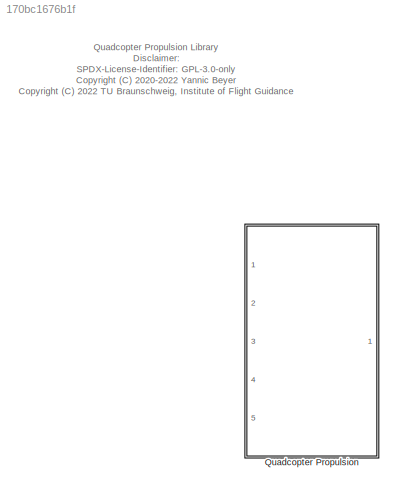
MODEL slx_170bc1676b1f
KIND library
CONFIG AbsTol = auto
CONFIG EnableMultiTasking = off
CONFIG FixedStep = auto
CONFIG MaxStep = auto
CONFIG MinStep = auto
CONFIG RelTol = 1e-3
CONFIG SampleTimeConstraint = Unconstrained
CONFIG Solver = VariableStepAuto
CONFIG SolverName = VariableStepAuto
CONFIG StartTime = 0.0
CONFIG StopTime = 10.0
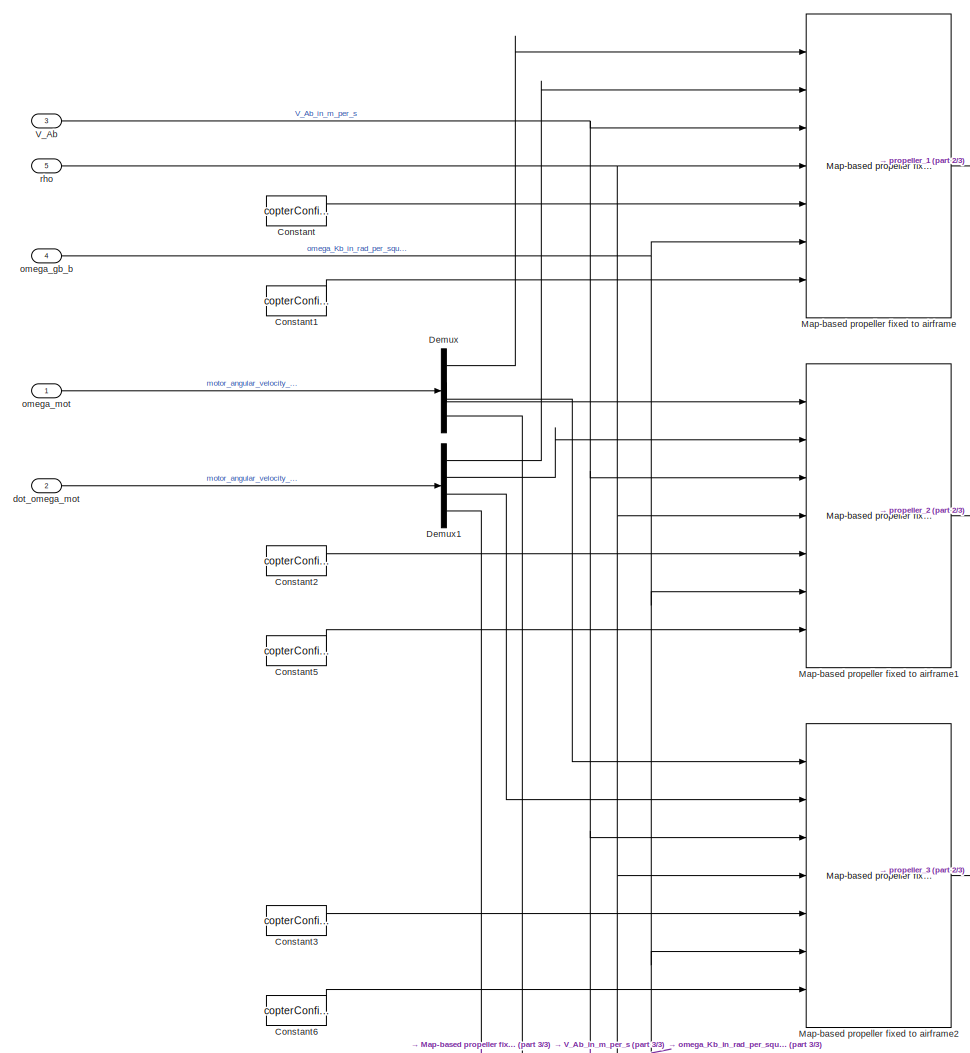
[diagram: Quadcopter Propulsion - part 1/3, left side, full height]
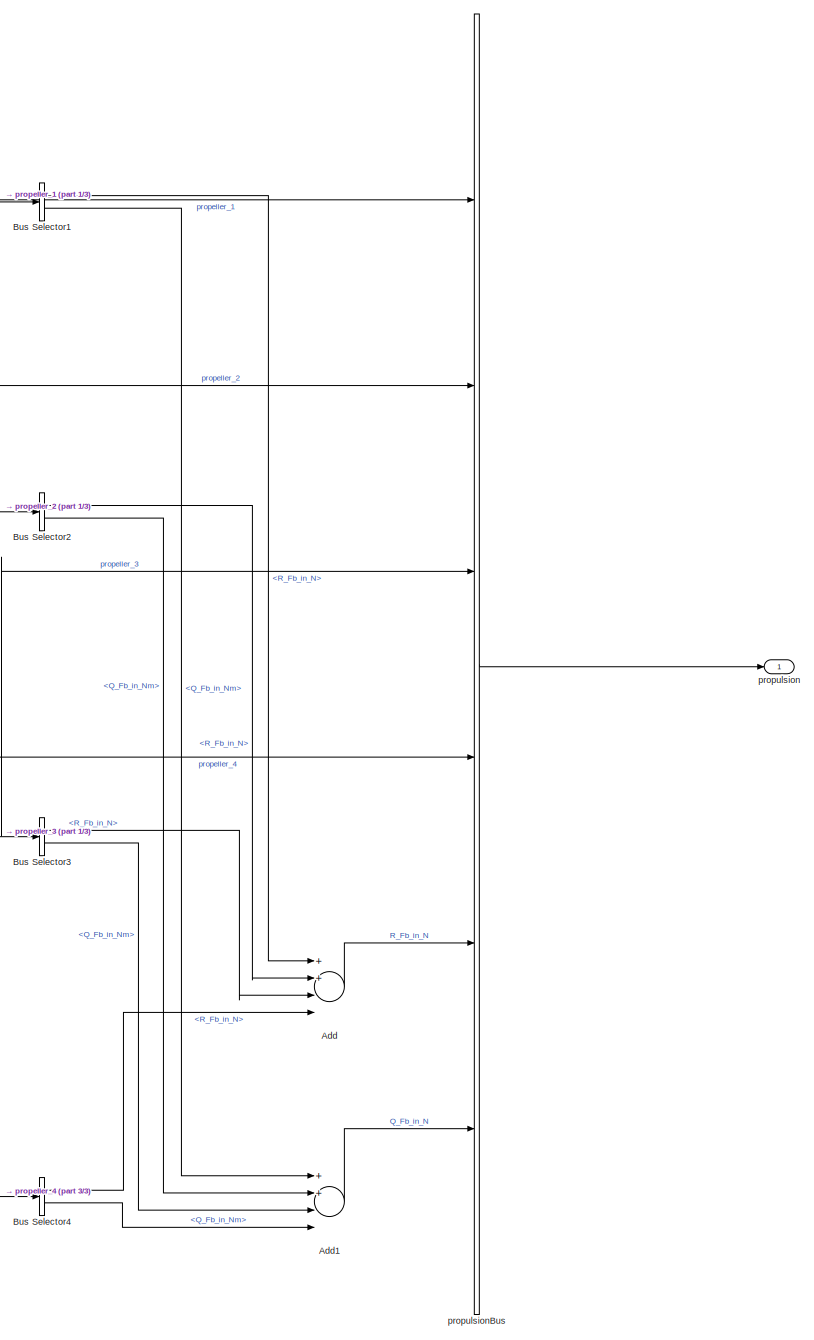
[diagram: Quadcopter Propulsion - part 2/3, right side, full height]
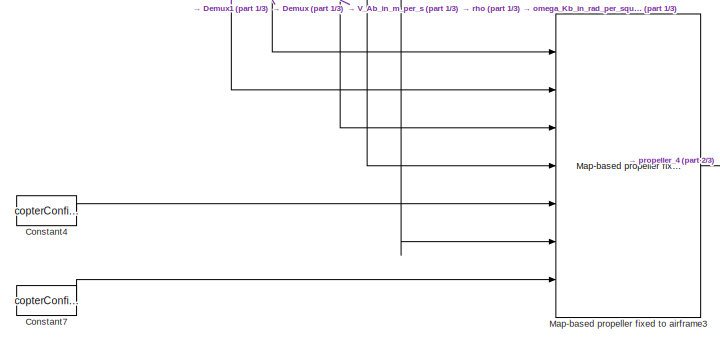
[diagram: Quadcopter Propulsion - part 3/3, bottom left region]
BLOCK [SubSystem] Quadcopter Propulsion
  Ports = [5, 1]
  RequestExecContextInheritance = off
BLOCK [Sum] Quadcopter Propulsion/Add
  InputSameDT = off
  Inputs = 4
  OutDataTypeStr = Inherit: Inherit via internal rule
  Ports = [4, 1]
  SaturateOnIntegerOverflow = off
BLOCK [Sum] Quadcopter Propulsion/Add1
  InputSameDT = off
  Inputs = 4
  OutDataTypeStr = Inherit: Inherit via internal rule
  Ports = [4, 1]
  SaturateOnIntegerOverflow = off
BLOCK [BusSelector] Quadcopter Propulsion/Bus Selector1
  OutputAsBus = off
  OutputSignals = R_Fb_in_N,Q_Fb_in_Nm
  Ports = [1, 2]
BLOCK [BusSelector] Quadcopter Propulsion/Bus Selector2
  OutputAsBus = off
  OutputSignals = R_Fb_in_N,Q_Fb_in_Nm
  Ports = [1, 2]
BLOCK [BusSelector] Quadcopter Propulsion/Bus Selector3
  OutputAsBus = off
  OutputSignals = R_Fb_in_N,Q_Fb_in_Nm
  Ports = [1, 2]
BLOCK [BusSelector] Quadcopter Propulsion/Bus Selector4
  OutputAsBus = off
  OutputSignals = R_Fb_in_N,Q_Fb_in_Nm
  Ports = [1, 2]
BLOCK [Constant] Quadcopter Propulsion/Constant
  Value = copterConfig.propPos_c(:,1) - copterConfig.CoG_Pos_c
BLOCK [Constant] Quadcopter Propulsion/Constant1
  Value = copterConfig.M_b_prop1
BLOCK [Constant] Quadcopter Propulsion/Constant2
  Value = copterConfig.propPos_c(:,2) - copterConfig.CoG_Pos_c
BLOCK [Constant] Quadcopter Propulsion/Constant3
  Value = copterConfig.propPos_c(:,3) - copterConfig.CoG_Pos_c
BLOCK [Constant] Quadcopter Propulsion/Constant4
  Value = copterConfig.propPos_c(:,4) - copterConfig.CoG_Pos_c
BLOCK [Constant] Quadcopter Propulsion/Constant5
  Value = copterConfig.M_b_prop2
BLOCK [Constant] Quadcopter Propulsion/Constant6
  Value = copterConfig.M_b_prop3
BLOCK [Constant] Quadcopter Propulsion/Constant7
  Value = copterConfig.M_b_prop4
BLOCK [Demux] Quadcopter Propulsion/Demux
  DisplayOption = bar
  Ports = [1, 4]
BLOCK [Demux] Quadcopter Propulsion/Demux1
  DisplayOption = bar
  Ports = [1, 4]
BLOCK [Reference] Quadcopter Propulsion/Map-based propeller fixed to airframe  REF=propulsion_lib/Map-based propeller fixed to airframe  (lib defined in slx_12561ba25cc8)
  Ports = [7, 1]
  SourceBlock = propulsion_lib/Map-based propeller fixed to airframe
  SourceProductName = LADAC
BLOCK [Reference] Quadcopter Propulsion/Map-based propeller fixed to airframe1  REF=propulsion_lib/Map-based propeller fixed to airframe  (lib defined in slx_12561ba25cc8)
  Ports = [7, 1]
  SourceBlock = propulsion_lib/Map-based propeller fixed to airframe
  SourceProductName = LADAC
BLOCK [Reference] Quadcopter Propulsion/Map-based propeller fixed to airframe2  REF=propulsion_lib/Map-based propeller fixed to airframe  (lib defined in slx_12561ba25cc8)
  Ports = [7, 1]
  SourceBlock = propulsion_lib/Map-based propeller fixed to airframe
  SourceProductName = LADAC
BLOCK [Reference] Quadcopter Propulsion/Map-based propeller fixed to airframe3  REF=propulsion_lib/Map-based propeller fixed to airframe  (lib defined in slx_12561ba25cc8)
  Ports = [7, 1]
  SourceBlock = propulsion_lib/Map-based propeller fixed to airframe
  SourceProductName = LADAC
BLOCK [Inport] Quadcopter Propulsion/V_Ab
  IconDisplay = Port number
  Port = 3
  PortDimensions = 3
  SamplingMode = Sample based
  SignalType = real
BLOCK [Inport] Quadcopter Propulsion/dot_omega_mot
  IconDisplay = Port number
  Port = 2
  PortDimensions = 4
  SamplingMode = Sample based
  SignalType = real
BLOCK [Inport] Quadcopter Propulsion/omega_gb_b 
  IconDisplay = Port number
  Port = 4
  PortDimensions = 3
  SamplingMode = Sample based
  SignalType = real
BLOCK [Inport] Quadcopter Propulsion/omega_mot
  IconDisplay = Port number
  PortDimensions = 4
  SamplingMode = Sample based
  SignalType = real
BLOCK [Outport] Quadcopter Propulsion/propulsion
  IconDisplay = Port number
BLOCK [BusCreator] Quadcopter Propulsion/propulsionBus
  DisplayOption = bar
  InheritFromInputs = on
  Inputs = 6
  Ports = [6, 1]
BLOCK [Inport] Quadcopter Propulsion/rho
  IconDisplay = Port number
  Port = 5
  PortDimensions = 1
  SamplingMode = Sample based
  SignalType = real
ANNOTATION (root): Quadcopter Propulsion Library Disclaimer: SPDX-License-Identifier: GPL-3.0-only <copyright redacted>
LINE Quadcopter Propulsion/Add1:1 -> Quadcopter Propulsion/propulsionBus:6
LINE Quadcopter Propulsion/Add:1 -> Quadcopter Propulsion/propulsionBus:5
LINE Quadcopter Propulsion/Bus Selector1:1 -> Quadcopter Propulsion/Add:1
LINE Quadcopter Propulsion/Bus Selector1:2 -> Quadcopter Propulsion/Add1:1
LINE Quadcopter Propulsion/Bus Selector2:1 -> Quadcopter Propulsion/Add:2
LINE Quadcopter Propulsion/Bus Selector2:2 -> Quadcopter Propulsion/Add1:2
LINE Quadcopter Propulsion/Bus Selector3:1 -> Quadcopter Propulsion/Add:3
LINE Quadcopter Propulsion/Bus Selector3:2 -> Quadcopter Propulsion/Add1:3
LINE Quadcopter Propulsion/Bus Selector4:1 -> Quadcopter Propulsion/Add:4
LINE Quadcopter Propulsion/Bus Selector4:2 -> Quadcopter Propulsion/Add1:4
LINE Quadcopter Propulsion/Constant1:1 -> Quadcopter Propulsion/Map-based propeller fixed to airframe:7
LINE Quadcopter Propulsion/Constant2:1 -> Quadcopter Propulsion/Map-based propeller fixed to airframe1:5
LINE Quadcopter Propulsion/Constant3:1 -> Quadcopter Propulsion/Map-based propeller fixed to airframe2:5
LINE Quadcopter Propulsion/Constant4:1 -> Quadcopter Propulsion/Map-based propeller fixed to airframe3:5
LINE Quadcopter Propulsion/Constant5:1 -> Quadcopter Propulsion/Map-based propeller fixed to airframe1:7
LINE Quadcopter Propulsion/Constant6:1 -> Quadcopter Propulsion/Map-based propeller fixed to airframe2:7
LINE Quadcopter Propulsion/Constant7:1 -> Quadcopter Propulsion/Map-based propeller fixed to airframe3:7
LINE Quadcopter Propulsion/Constant:1 -> Quadcopter Propulsion/Map-based propeller fixed to airframe:5
LINE Quadcopter Propulsion/Demux1:1 -> Quadcopter Propulsion/Map-based propeller fixed to airframe:2
LINE Quadcopter Propulsion/Demux1:2 -> Quadcopter Propulsion/Map-based propeller fixed to airframe1:2
LINE Quadcopter Propulsion/Demux1:3 -> Quadcopter Propulsion/Map-based propeller fixed to airframe2:2
LINE Quadcopter Propulsion/Demux1:4 -> Quadcopter Propulsion/Map-based propeller fixed to airframe3:2
LINE Quadcopter Propulsion/Demux:1 -> Quadcopter Propulsion/Map-based propeller fixed to airframe:1
LINE Quadcopter Propulsion/Demux:2 -> Quadcopter Propulsion/Map-based propeller fixed to airframe1:1
LINE Quadcopter Propulsion/Demux:3 -> Quadcopter Propulsion/Map-based propeller fixed to airframe2:1
LINE Quadcopter Propulsion/Demux:4 -> Quadcopter Propulsion/Map-based propeller fixed to airframe3:1
NET Quadcopter Propulsion/Map-based propeller fixed to airframe1:1 -> Quadcopter Propulsion/Bus Selector2:1, Quadcopter Propulsion/propulsionBus:2
NET Quadcopter Propulsion/Map-based propeller fixed to airframe2:1 -> Quadcopter Propulsion/Bus Selector3:1, Quadcopter Propulsion/propulsionBus:3
NET Quadcopter Propulsion/Map-based propeller fixed to airframe3:1 -> Quadcopter Propulsion/Bus Selector4:1, Quadcopter Propulsion/propulsionBus:4
NET Quadcopter Propulsion/Map-based propeller fixed to airframe:1 -> Quadcopter Propulsion/Bus Selector1:1, Quadcopter Propulsion/propulsionBus:1
NET Quadcopter Propulsion/V_Ab:1 -> Quadcopter Propulsion/Map-based propeller fixed to airframe1:3, Quadcopter Propulsion/Map-based propeller fixed to airframe2:3, Quadcopter Propulsion/Map-based propeller fixed to airframe3:3, Quadcopter Propulsion/Map-based propeller fixed to airframe:3
LINE Quadcopter Propulsion/dot_omega_mot:1 -> Quadcopter Propulsion/Demux1:1
NET Quadcopter Propulsion/omega_gb_b :1 -> Quadcopter Propulsion/Map-based propeller fixed to airframe1:6, Quadcopter Propulsion/Map-based propeller fixed to airframe2:6, Quadcopter Propulsion/Map-based propeller fixed to airframe3:6, Quadcopter Propulsion/Map-based propeller fixed to airframe:6
LINE Quadcopter Propulsion/omega_mot:1 -> Quadcopter Propulsion/Demux:1
LINE Quadcopter Propulsion/propulsionBus:1 -> Quadcopter Propulsion/propulsion:1
NET Quadcopter Propulsion/rho:1 -> Quadcopter Propulsion/Map-based propeller fixed to airframe1:4, Quadcopter Propulsion/Map-based propeller fixed to airframe2:4, Quadcopter Propulsion/Map-based propeller fixed to airframe3:4, Quadcopter Propulsion/Map-based propeller fixed to airframe:4
note: NET lines group one-source signal fan-out (src -> all destinations, sorted); 1:1 wires keep LINE
